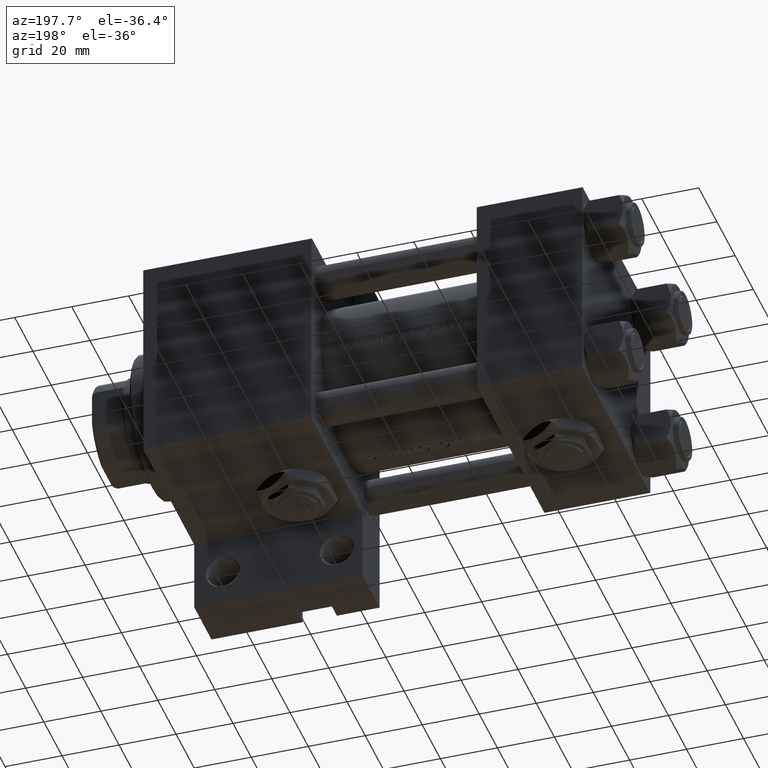
[diagram: clean part render]
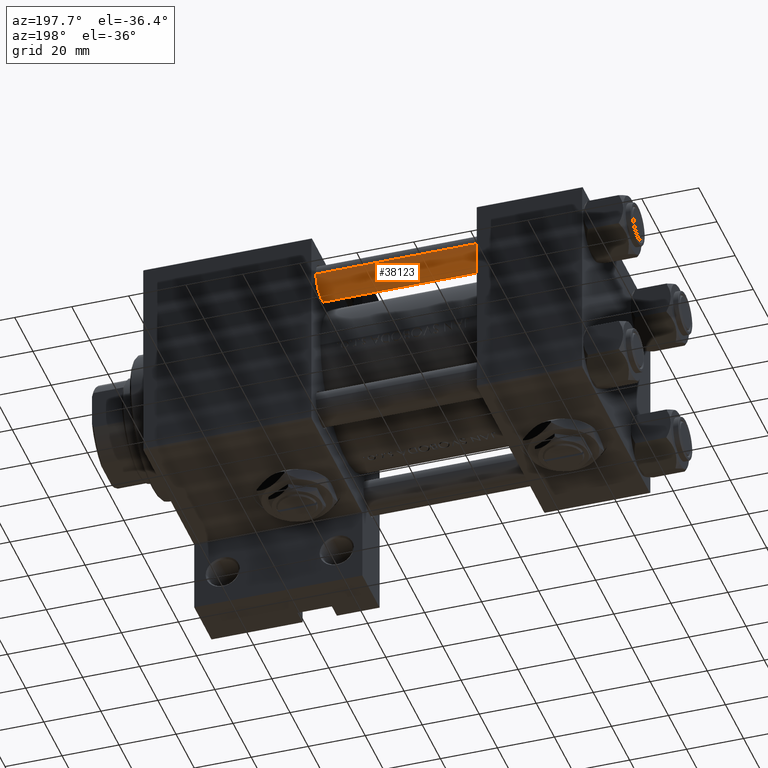
[diagram: same view with one face highlighted and labeled with its STEP entity id]
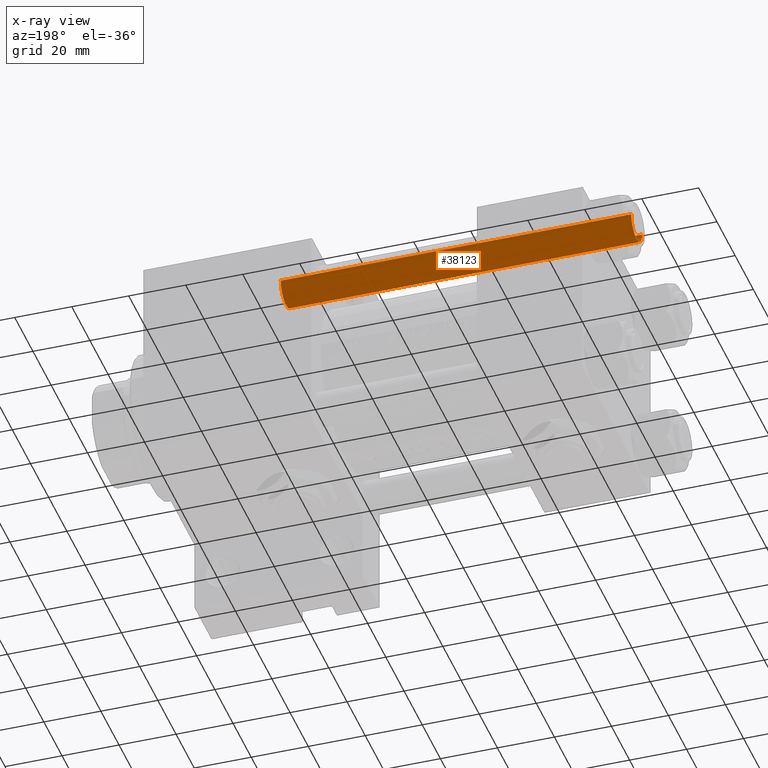
[diagram: x-ray of the same camera — body ghosted, the highlighted face saturated]
A machine part, auxiliary view. The second image highlights one B-rep face of the part: STEP entity #38123.
The next image is the same camera in x-ray: the body ghosted, the highlighted face saturated — about 0% of this face is hidden behind the body in this view.
In plain terms, the highlighted cylindrical surface (edge-blend (fillet) strip) has radius 6 mm, axis along (1, -0, 0).
Its self-contained STEP definition (entity closure, byte-faithful):
#1344 = VECTOR ( 'NONE', #28949, 1000.000000000000000 ) ;
#2669 = AXIS2_PLACEMENT_3D ( 'NONE', #49512, #10555, #18097 ) ;
#3201 = VERTEX_POINT ( 'NONE', #9889 ) ;
#4855 = ORIENTED_EDGE ( 'NONE', *, *, #5172, .F. ) ;
#5172 = EDGE_CURVE ( 'NONE', #46105, #30090, #17142, .T. ) ;
#6774 = DIRECTION ( 'NONE',  ( -0.000000000000000000, -0.000000000000000000, -1.000000000000000000 ) ) ;
#7023 = CYLINDRICAL_SURFACE ( 'NONE', #36879, 6.000000000000000888 ) ;
#8544 = ORIENTED_EDGE ( 'NONE', *, *, #42378, .T. ) ;
#8933 = VECTOR ( 'NONE', #22420, 1000.000000000000000 ) ;
#9889 = CARTESIAN_POINT ( 'NONE',  ( 6.000000000000000888, 7.347880794884120722E-16, 0.4999999999999865663 ) ) ;
#10555 = DIRECTION ( 'NONE',  ( 0.000000000000000000, 0.000000000000000000, -1.000000000000000000 ) ) ;
#12094 = CARTESIAN_POINT ( 'NONE',  ( 6.000000000000000888, 7.347880794884120722E-16, 124.0000000000000000 ) ) ;
#15128 = ORIENTED_EDGE ( 'NONE', *, *, #40811, .T. ) ;
#16225 = ORIENTED_EDGE ( 'NONE', *, *, #46515, .T. ) ;
#17142 = LINE ( 'NONE', #24925, #1344 ) ;
#18097 = DIRECTION ( 'NONE',  ( 1.000000000000000000, 0.000000000000000000, 0.000000000000000000 ) ) ;
#18571 = FACE_OUTER_BOUND ( 'NONE', #33648, .T. ) ;
#19131 = LINE ( 'NONE', #12094, #8933 ) ;
#22420 = DIRECTION ( 'NONE',  ( -0.000000000000000000, -0.000000000000000000, -1.000000000000000000 ) ) ;
#24925 = CARTESIAN_POINT ( 'NONE',  ( -6.000000000000000888, 0.000000000000000000, 124.0000000000000000 ) ) ;
#25844 = CARTESIAN_POINT ( 'NONE',  ( 0.000000000000000000, 0.000000000000000000, 0.4999999999999865663 ) ) ;
#25911 = CIRCLE ( 'NONE', #2669, 6.000000000000000888 ) ;
#26092 = DIRECTION ( 'NONE',  ( 1.000000000000000000, 0.000000000000000000, 0.000000000000000000 ) ) ;
#26892 = CARTESIAN_POINT ( 'NONE',  ( -6.000000000000000888, 0.000000000000000000, 0.4999999999999865663 ) ) ;
#28721 = CARTESIAN_POINT ( 'NONE',  ( -6.000000000000000888, 0.000000000000000000, 123.5000000000000426 ) ) ;
#28949 = DIRECTION ( 'NONE',  ( -0.000000000000000000, -0.000000000000000000, -1.000000000000000000 ) ) ;
#30090 = VERTEX_POINT ( 'NONE', #26892 ) ;
#30667 = CARTESIAN_POINT ( 'NONE',  ( 6.000000000000000888, 7.347880794884120722E-16, 123.5000000000000426 ) ) ;
#32096 = CIRCLE ( 'NONE', #38536, 6.000000000000000888 ) ;
#33648 = EDGE_LOOP ( 'NONE', ( #16225, #8544, #15128, #4855 ) ) ;
#33921 = DIRECTION ( 'NONE',  ( -1.000000000000000000, 0.000000000000000000, 0.000000000000000000 ) ) ;
#34164 = CARTESIAN_POINT ( 'NONE',  ( 0.000000000000000000, 0.000000000000000000, 124.0000000000000000 ) ) ;
#36879 = AXIS2_PLACEMENT_3D ( 'NONE', #34164, #6774, #33921 ) ;
#38123 = ADVANCED_FACE ( 'NONE', ( #18571 ), #7023, .T. ) ;
#38536 = AXIS2_PLACEMENT_3D ( 'NONE', #25844, #48971, #26092 ) ;
#40811 = EDGE_CURVE ( 'NONE', #3201, #30090, #32096, .T. ) ;
#42378 = EDGE_CURVE ( 'NONE', #47825, #3201, #19131, .T. ) ;
#46105 = VERTEX_POINT ( 'NONE', #28721 ) ;
#46515 = EDGE_CURVE ( 'NONE', #46105, #47825, #25911, .T. ) ;
#47825 = VERTEX_POINT ( 'NONE', #30667 ) ;
#48971 = DIRECTION ( 'NONE',  ( -0.000000000000000000, -0.000000000000000000, 1.000000000000000000 ) ) ;
#49512 = CARTESIAN_POINT ( 'NONE',  ( 0.000000000000000000, 0.000000000000000000, 123.5000000000000426 ) ) ;